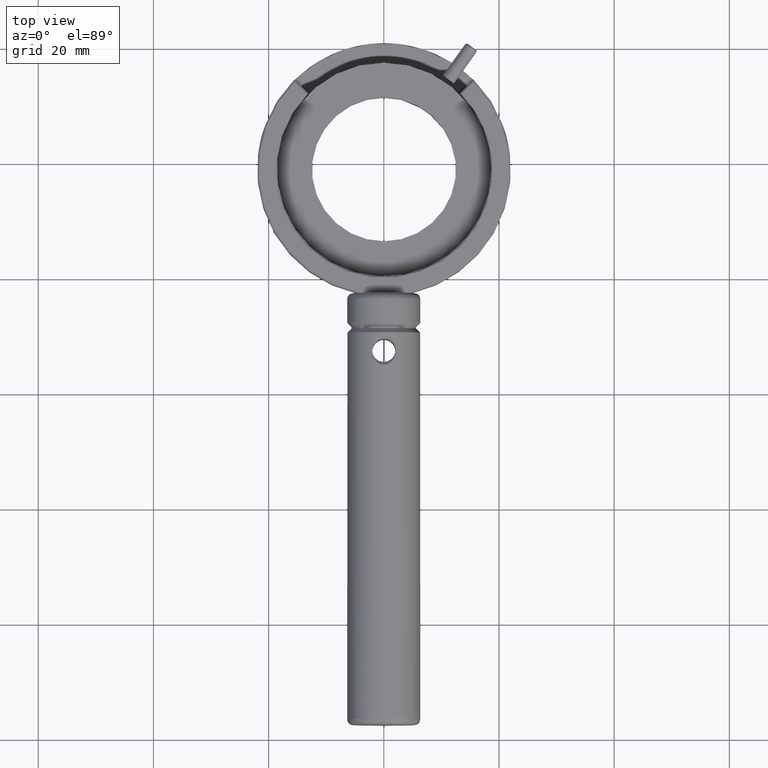
[diagram: clean part render]
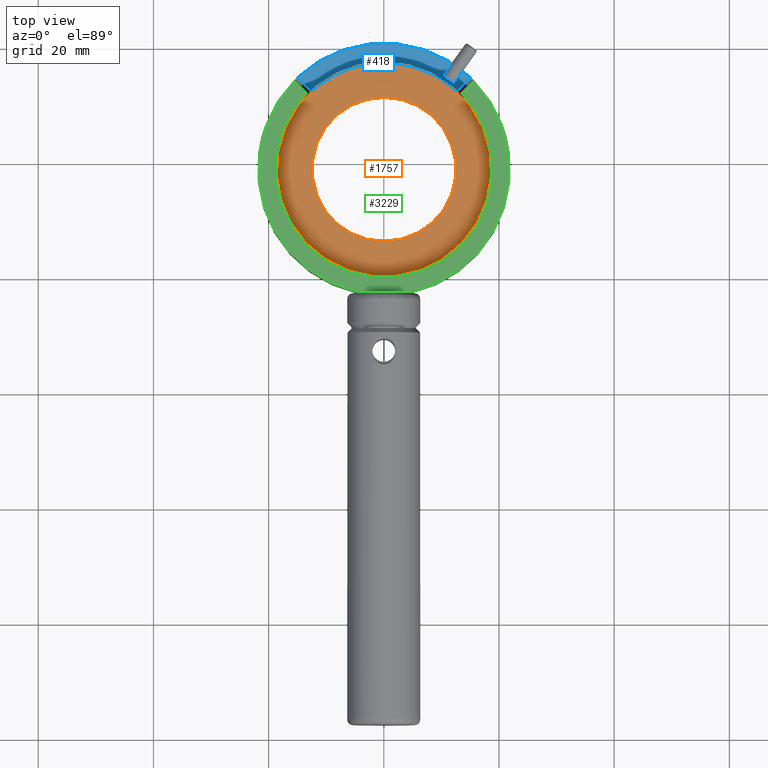
[diagram: same view with three faces highlighted in distinct colors, each labeled with its STEP entity id]
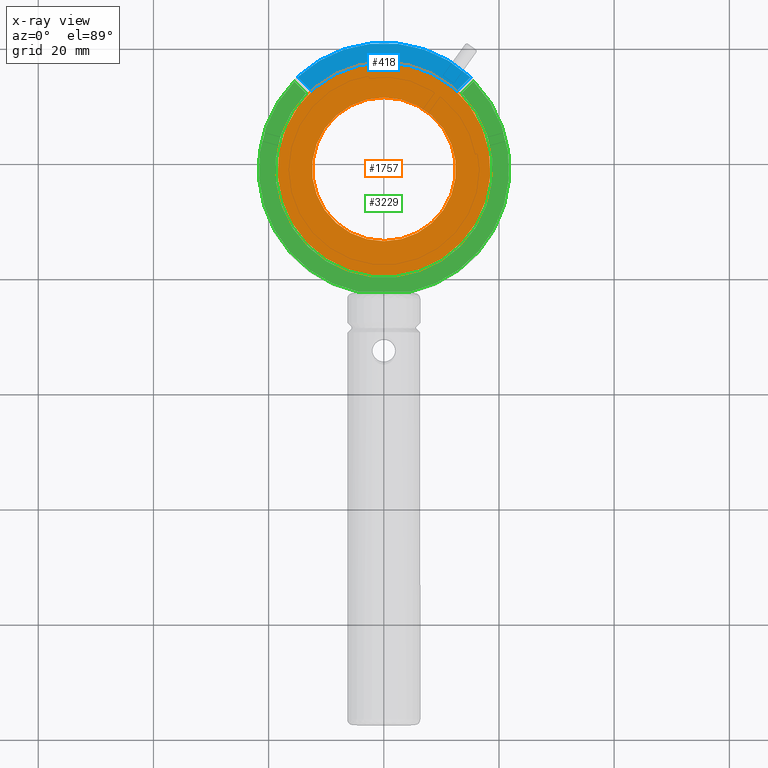
[diagram: x-ray of the same camera — body ghosted, the three highlighted faces saturated]
A machine part, top view with three faces highlighted in distinct colors.
The next image is the same camera in x-ray (body ghosted, the three faces saturated) — at least one of them is partly hidden behind the body in this view.
Their STEP definitions:

[orange] entity #1757 — the highlighted planar face has unit normal (0, 0, 1).
#247 = EDGE_LOOP ( 'NONE', ( #347 ) ) ;
#256 = DIRECTION ( 'NONE',  ( 0.000000000000000000, 1.000000000000000000, -1.769417945496343828E-15 ) ) ;
#347 = ORIENTED_EDGE ( 'NONE', *, *, #2209, .F. ) ;
#487 = CARTESIAN_POINT ( 'NONE',  ( 0.03631047345559575840, 59.00000000000000000, 2.060000000000000053 ) ) ;
#748 = FACE_BOUND ( 'NONE', #895, .T. ) ;
#752 = DIRECTION ( 'NONE',  ( 0.000000000000000000, 1.000000000000000000, -1.781607894246450242E-15 ) ) ;
#760 = EDGE_CURVE ( 'NONE', #1610, #1610, #1044, .T. ) ;
#895 = EDGE_LOOP ( 'NONE', ( #1055 ) ) ;
#983 = CARTESIAN_POINT ( 'NONE',  ( 0.03631047345559575840, 59.00000000000000000, 2.060000000000000053 ) ) ;
#1044 = CIRCLE ( 'NONE', #1839, 12.49999999999999645 ) ;
#1055 = ORIENTED_EDGE ( 'NONE', *, *, #760, .T. ) ;
#1078 = FACE_OUTER_BOUND ( 'NONE', #247, .T. ) ;
#1248 = AXIS2_PLACEMENT_3D ( 'NONE', #2691, #1832, #3245 ) ;
#1413 = VERTEX_POINT ( 'NONE', #2489 ) ;
#1610 = VERTEX_POINT ( 'NONE', #2685 ) ;
#1616 = PLANE ( 'NONE',  #1248 ) ;
#1757 = ADVANCED_FACE ( 'NONE', ( #1078, #748 ), #1616, .T. ) ;
#1832 = DIRECTION ( 'NONE',  ( 1.065302022606576100E-15, 1.774820270857320094E-15, 1.000000000000000000 ) ) ;
#1836 = DIRECTION ( 'NONE',  ( -1.065302022606571958E-15, -1.774820270857325025E-15, -1.000000000000000000 ) ) ;
#1839 = AXIS2_PLACEMENT_3D ( 'NONE', #487, #3491, #256 ) ;
#1908 = AXIS2_PLACEMENT_3D ( 'NONE', #983, #1836, #752 ) ;
#2209 = EDGE_CURVE ( 'NONE', #1413, #1413, #3450, .T. ) ;
#2489 = CARTESIAN_POINT ( 'NONE',  ( 0.03631047345559575840, 77.50000000000000000, 2.059999999999967191 ) ) ;
#2685 = CARTESIAN_POINT ( 'NONE',  ( 0.03631047345559575840, 71.50000000000000000, 2.059999999999978293 ) ) ;
#2691 = CARTESIAN_POINT ( 'NONE',  ( 0.03631047345559575840, 59.00000000000000000, 2.060000000000000053 ) ) ;
#3245 = DIRECTION ( 'NONE',  ( 0.000000000000000000, -1.000000000000000000, 1.774820270857320094E-15 ) ) ;
#3450 = CIRCLE ( 'NONE', #1908, 18.50000000000000355 ) ;
#3491 = DIRECTION ( 'NONE',  ( -1.065302022606571958E-15, -1.774820270857325025E-15, -1.000000000000000000 ) ) ;

[blue] entity #418 — the highlighted planar face has unit normal (0, 0, 1).
#98 = VERTEX_POINT ( 'NONE', #2210 ) ;
#149 = CARTESIAN_POINT ( 'NONE',  ( 0.03631047345558845174, 59.00000000000000000, -2.799999999999999822 ) ) ;
#178 = LINE ( 'NONE', #2372, #3173 ) ;
#277 = VERTEX_POINT ( 'NONE', #1953 ) ;
#390 = FACE_OUTER_BOUND ( 'NONE', #548, .T. ) ;
#407 = DIRECTION ( 'NONE',  ( 1.000000000000000000, 0.000000000000000000, 0.000000000000000000 ) ) ;
#418 = ADVANCED_FACE ( 'NONE', ( #390 ), #1181, .T. ) ;
#540 = VERTEX_POINT ( 'NONE', #949 ) ;
#548 = EDGE_LOOP ( 'NONE', ( #2465, #1609, #3043, #1641 ) ) ;
#684 = DIRECTION ( 'NONE',  ( 0.000000000000000000, 0.000000000000000000, 1.000000000000000000 ) ) ;
#823 = DIRECTION ( 'NONE',  ( -0.000000000000000000, -0.000000000000000000, -1.000000000000000000 ) ) ;
#949 = CARTESIAN_POINT ( 'NONE',  ( -14.98066628139066125, 75.07763692662598487, -2.799999999999999822 ) ) ;
#958 = DIRECTION ( 'NONE',  ( 0.7071067811865480168, 0.7071067811865470176, 0.000000000000000000 ) ) ;
#1171 = CARTESIAN_POINT ( 'NONE',  ( 12.66516206805026101, 72.68951176637440881, -2.799999999999999822 ) ) ;
#1181 = PLANE ( 'NONE',  #1501 ) ;
#1222 = DIRECTION ( 'NONE',  ( 0.000000000000000000, 0.000000000000000000, -1.000000000000000000 ) ) ;
#1446 = CIRCLE ( 'NONE', #3263, 18.62500000000000000 ) ;
#1501 = AXIS2_PLACEMENT_3D ( 'NONE', #2529, #684, #407 ) ;
#1575 = DIRECTION ( 'NONE',  ( 0.7071067811865480168, -0.7071067811865470176, 0.000000000000000000 ) ) ;
#1609 = ORIENTED_EDGE ( 'NONE', *, *, #3277, .T. ) ;
#1626 = CARTESIAN_POINT ( 'NONE',  ( 0.03631047345558845174, 59.00000000000000000, -2.799999999999999822 ) ) ;
#1641 = ORIENTED_EDGE ( 'NONE', *, *, #2619, .T. ) ;
#1953 = CARTESIAN_POINT ( 'NONE',  ( -12.59254112113909940, 72.68951176637440881, -2.799999999999999822 ) ) ;
#2040 = CIRCLE ( 'NONE', #3006, 22.00000000000000000 ) ;
#2210 = CARTESIAN_POINT ( 'NONE',  ( 15.05328722830184951, 75.07763692662598487, -2.799999999999999822 ) ) ;
#2372 = CARTESIAN_POINT ( 'NONE',  ( -14.98066628139066125, 75.07763692662598487, -2.799999999999999822 ) ) ;
#2465 = ORIENTED_EDGE ( 'NONE', *, *, #2642, .F. ) ;
#2487 = VECTOR ( 'NONE', #958, 1000.000000000000000 ) ;
#2518 = LINE ( 'NONE', #1171, #2487 ) ;
#2529 = CARTESIAN_POINT ( 'NONE',  ( 0.03631047345558845174, 59.00000000000000000, -2.799999999999999822 ) ) ;
#2619 = EDGE_CURVE ( 'NONE', #2722, #98, #2518, .T. ) ;
#2642 = EDGE_CURVE ( 'NONE', #540, #98, #2040, .T. ) ;
#2722 = VERTEX_POINT ( 'NONE', #3486 ) ;
#3006 = AXIS2_PLACEMENT_3D ( 'NONE', #149, #1222, #3396 ) ;
#3012 = DIRECTION ( 'NONE',  ( 1.000000000000000000, 1.862790309773752706E-15, 0.000000000000000000 ) ) ;
#3043 = ORIENTED_EDGE ( 'NONE', *, *, #3440, .T. ) ;
#3173 = VECTOR ( 'NONE', #1575, 1000.000000000000000 ) ;
#3263 = AXIS2_PLACEMENT_3D ( 'NONE', #1626, #823, #3012 ) ;
#3277 = EDGE_CURVE ( 'NONE', #540, #277, #178, .T. ) ;
#3396 = DIRECTION ( 'NONE',  ( -1.000000000000000000, 0.000000000000000000, 0.000000000000000000 ) ) ;
#3440 = EDGE_CURVE ( 'NONE', #277, #2722, #1446, .T. ) ;
#3486 = CARTESIAN_POINT ( 'NONE',  ( 12.66516206805027878, 72.68951176637440881, -2.799999999999999822 ) ) ;

[green] entity #3229 — the highlighted planar face has unit normal (0, 0, 1).
#26 = VERTEX_POINT ( 'NONE', #1310 ) ;
#73 = CARTESIAN_POINT ( 'NONE',  ( 0.03631047345558845174, 59.00000000000000000, 4.000000000000000000 ) ) ;
#111 = CARTESIAN_POINT ( 'NONE',  ( 15.59164366798199985, 74.20177980393300743, 4.000000000000000000 ) ) ;
#116 = CARTESIAN_POINT ( 'NONE',  ( 0.03631047345558845174, 59.00000000000000000, 4.000000000000000000 ) ) ;
#158 = DIRECTION ( 'NONE',  ( -1.000000000000000000, -0.000000000000000000, -0.000000000000000000 ) ) ;
#172 = DIRECTION ( 'NONE',  ( -0.000000000000000000, -0.000000000000000000, -1.000000000000000000 ) ) ;
#208 = LINE ( 'NONE', #2103, #1383 ) ;
#434 = CARTESIAN_POINT ( 'NONE',  ( -4.600498774292240078, 37.75000000000000000, 4.000000000000000000 ) ) ;
#522 = EDGE_CURVE ( 'NONE', #26, #2451, #3388, .T. ) ;
#527 = EDGE_LOOP ( 'NONE', ( #2154, #1482, #3511, #596, #2804, #2718 ) ) ;
#596 = ORIENTED_EDGE ( 'NONE', *, *, #522, .F. ) ;
#635 = DIRECTION ( 'NONE',  ( 0.000000000000000000, 1.000000000000000000, 0.000000000000000000 ) ) ;
#710 = DIRECTION ( 'NONE',  ( 0.000000000000000000, -9.856383386231858211E-18, -1.000000000000000000 ) ) ;
#744 = PLANE ( 'NONE',  #2706 ) ;
#801 = EDGE_CURVE ( 'NONE', #3167, #1392, #208, .T. ) ;
#909 = VERTEX_POINT ( 'NONE', #3285 ) ;
#928 = VECTOR ( 'NONE', #158, 1000.000000000000000 ) ;
#969 = DIRECTION ( 'NONE',  ( 0.000000000000000000, 0.000000000000000000, 1.000000000000000000 ) ) ;
#1086 = VERTEX_POINT ( 'NONE', #111 ) ;
#1310 = CARTESIAN_POINT ( 'NONE',  ( 4.673119721203419452, 37.75000000000000000, 4.000000000000000000 ) ) ;
#1347 = LINE ( 'NONE', #1364, #3413 ) ;
#1364 = CARTESIAN_POINT ( 'NONE',  ( 15.59164366798195012, 74.20177980393300743, 4.000000000000000000 ) ) ;
#1383 = VECTOR ( 'NONE', #3216, 1000.000000000000114 ) ;
#1392 = VERTEX_POINT ( 'NONE', #3023 ) ;
#1401 = DIRECTION ( 'NONE',  ( 0.000000000000000000, -9.856383386231858211E-18, -1.000000000000000000 ) ) ;
#1482 = ORIENTED_EDGE ( 'NONE', *, *, #801, .T. ) ;
#1519 = CARTESIAN_POINT ( 'NONE',  ( 0.03631047345558845174, 59.00000000000000000, 4.000000000000000000 ) ) ;
#1545 = DIRECTION ( 'NONE',  ( 1.000000000000000000, 0.000000000000000000, 0.000000000000000000 ) ) ;
#1560 = FACE_OUTER_BOUND ( 'NONE', #527, .T. ) ;
#1588 = AXIS2_PLACEMENT_3D ( 'NONE', #116, #710, #3087 ) ;
#1788 = CARTESIAN_POINT ( 'NONE',  ( 4.700000000000000178, 37.75000000000000000, 4.000000000000000000 ) ) ;
#1865 = EDGE_CURVE ( 'NONE', #1086, #909, #1347, .T. ) ;
#1909 = EDGE_CURVE ( 'NONE', #1086, #26, #2328, .T. ) ;
#2103 = CARTESIAN_POINT ( 'NONE',  ( -13.48593595879679974, 72.16869304165899734, 4.000000000000000000 ) ) ;
#2154 = ORIENTED_EDGE ( 'NONE', *, *, #2385, .T. ) ;
#2243 = AXIS2_PLACEMENT_3D ( 'NONE', #1519, #172, #3442 ) ;
#2328 = CIRCLE ( 'NONE', #3234, 21.74999999999999289 ) ;
#2385 = EDGE_CURVE ( 'NONE', #909, #3167, #2870, .T. ) ;
#2439 = DIRECTION ( 'NONE',  ( -0.7071067811865470176, -0.7071067811865480168, 0.000000000000000000 ) ) ;
#2451 = VERTEX_POINT ( 'NONE', #434 ) ;
#2514 = EDGE_CURVE ( 'NONE', #2451, #1392, #3113, .T. ) ;
#2706 = AXIS2_PLACEMENT_3D ( 'NONE', #2922, #969, #1545 ) ;
#2718 = ORIENTED_EDGE ( 'NONE', *, *, #1865, .T. ) ;
#2804 = ORIENTED_EDGE ( 'NONE', *, *, #1909, .F. ) ;
#2870 = CIRCLE ( 'NONE', #2243, 18.87500000000000000 ) ;
#2922 = CARTESIAN_POINT ( 'NONE',  ( 0.03631047345558845174, 59.00000000000000000, 4.000000000000000000 ) ) ;
#3023 = CARTESIAN_POINT ( 'NONE',  ( -15.51902272107079916, 74.20177980393300743, 4.000000000000000000 ) ) ;
#3048 = CARTESIAN_POINT ( 'NONE',  ( -13.48593595879679974, 72.16869304165899734, 4.000000000000000000 ) ) ;
#3087 = DIRECTION ( 'NONE',  ( 0.000000000000000000, 1.000000000000000000, 0.000000000000000000 ) ) ;
#3113 = CIRCLE ( 'NONE', #1588, 21.74999999999999289 ) ;
#3167 = VERTEX_POINT ( 'NONE', #3048 ) ;
#3216 = DIRECTION ( 'NONE',  ( -0.7071067811865489050, 0.7071067811865460184, 0.000000000000000000 ) ) ;
#3229 = ADVANCED_FACE ( 'NONE', ( #1560 ), #744, .T. ) ;
#3234 = AXIS2_PLACEMENT_3D ( 'NONE', #73, #1401, #635 ) ;
#3285 = CARTESIAN_POINT ( 'NONE',  ( 13.55855690570795957, 72.16869304165899734, 4.000000000000000000 ) ) ;
#3388 = LINE ( 'NONE', #1788, #928 ) ;
#3413 = VECTOR ( 'NONE', #2439, 1000.000000000000000 ) ;
#3442 = DIRECTION ( 'NONE',  ( 1.000000000000000000, 0.000000000000000000, 0.000000000000000000 ) ) ;
#3511 = ORIENTED_EDGE ( 'NONE', *, *, #2514, .F. ) ;